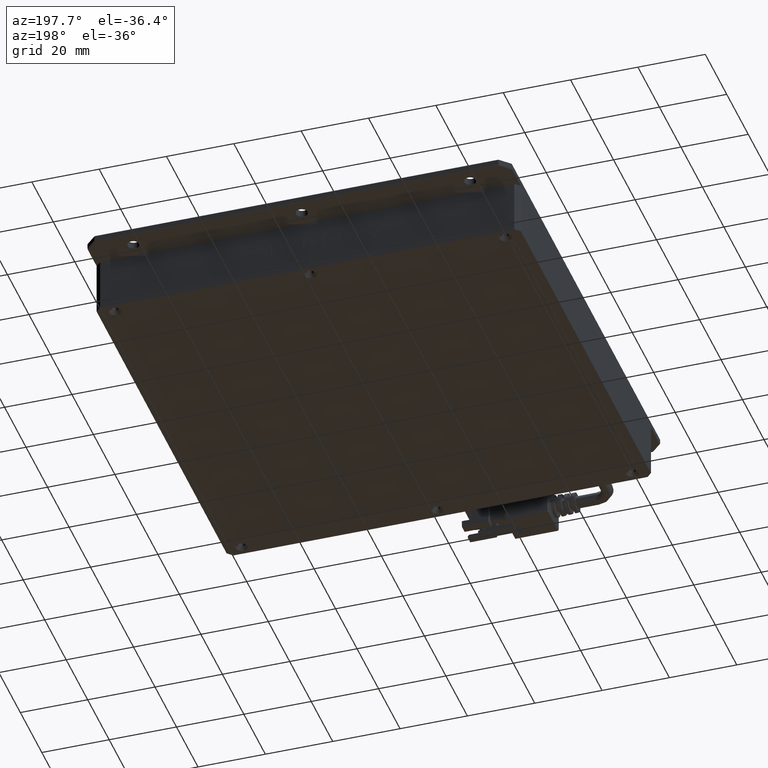
[diagram: clean part render]
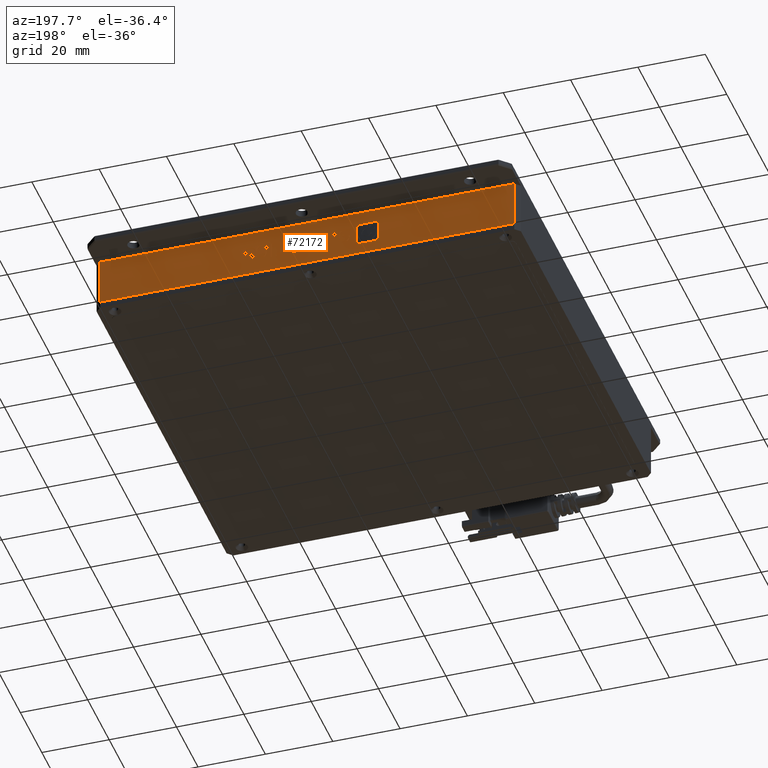
[diagram: same view with one face highlighted and labeled with its STEP entity id]
A machine part, auxiliary view. The second image highlights one B-rep face of the part: STEP entity #72172.
In plain terms, the highlighted planar face has unit normal (0, -1, 0).
Its self-contained STEP definition (entity closure, byte-faithful):
#114 = CARTESIAN_POINT ( 'NONE',  ( 15.17839297332601600, 72.88965253913710300, 7.418943049410931000 ) ) ;
#150 = EDGE_CURVE ( 'NONE', #39910, #42073, #12845, .T. ) ;
#644 = ORIENTED_EDGE ( 'NONE', *, *, #63685, .F. ) ;
#765 = CARTESIAN_POINT ( 'NONE',  ( -11.15524683197433100, 72.88965253913710300, 8.458579339297333600 ) ) ;
#894 = VECTOR ( 'NONE', #7333, 1000.000000000000000 ) ;
#906 = ORIENTED_EDGE ( 'NONE', *, *, #91943, .F. ) ;
#938 = VERTEX_POINT ( 'NONE', #73944 ) ;
#1027 = VERTEX_POINT ( 'NONE', #90417 ) ;
#1059 = CARTESIAN_POINT ( 'NONE',  ( 0.7489446228661211800, 72.88965253913710300, 6.749175607550478500 ) ) ;
#1203 = CARTESIAN_POINT ( 'NONE',  ( 14.61218150766885400, 72.88965253913710300, 8.298012816852800500 ) ) ;
#1238 = EDGE_CURVE ( 'NONE', #88937, #98182, #95165, .T. ) ;
#1720 = FACE_BOUND ( 'NONE', #86813, .T. ) ;
#1746 = EDGE_CURVE ( 'NONE', #34003, #21683, #13509, .T. ) ;
#1779 = CARTESIAN_POINT ( 'NONE',  ( 13.88303061529461100, 72.88965253913710300, 4.419044455576449000 ) ) ;
#1792 = VECTOR ( 'NONE', #58622, 1000.000000000000000 ) ;
#1912 = CARTESIAN_POINT ( 'NONE',  ( -6.332410163504942300, 72.88965253913710300, 8.088710491271411800 ) ) ;
#1998 = ORIENTED_EDGE ( 'NONE', *, *, #47765, .T. ) ;
#2286 = CARTESIAN_POINT ( 'NONE',  ( -7.315157594548704600, 72.88965253913710300, 8.444524444759792900 ) ) ;
#2470 = CARTESIAN_POINT ( 'NONE',  ( 4.699526018214772400, 72.88965253913710300, 6.937547700573754000 ) ) ;
#2542 = VECTOR ( 'NONE', #86421, 1000.000000000000000 ) ;
#2676 = CARTESIAN_POINT ( 'NONE',  ( -14.89432935719636800, 72.88965253913710300, 4.497999126214069500 ) ) ;
#2885 = CARTESIAN_POINT ( 'NONE',  ( 17.84675424969151100, 72.88965253913710300, 4.433099350114017200 ) ) ;
#3225 = ORIENTED_EDGE ( 'NONE', *, *, #80818, .F. ) ;
#3246 = B_SPLINE_CURVE_WITH_KNOTS ( 'NONE', 3,
 ( #54769, #93785, #62621, #15857 ),
 .UNSPECIFIED., .F., .F.,
 ( 4, 4 ),
 ( 10.00000000000000000, 11.00000000000000000 ),
 .UNSPECIFIED. ) ;
#3478 = LINE ( 'NONE', #92992, #81679 ) ;
#3493 = CARTESIAN_POINT ( 'NONE',  ( 10.29702466613258200, 72.88965253913710300, 8.967780258713254700 ) ) ;
#3800 = ORIENTED_EDGE ( 'NONE', *, *, #10105, .F. ) ;
#3873 = ORIENTED_EDGE ( 'NONE', *, *, #53385, .F. ) ;
#3899 = B_SPLINE_CURVE_WITH_KNOTS ( 'NONE', 3,
 ( #28687, #67577, #36515, #91260 ),
 .UNSPECIFIED., .F., .F.,
 ( 4, 4 ),
 ( 5.000000000000000000, 6.000000000000000000 ),
 .UNSPECIFIED. ) ;
#3936 = CARTESIAN_POINT ( 'NONE',  ( 61.14490263459336500, 72.88965253913710300, 13.99999999998362900 ) ) ;
#4073 = CARTESIAN_POINT ( 'NONE',  ( -11.94268598827474800, 72.88965253913710300, 6.372431421503926600 ) ) ;
#4190 = CARTESIAN_POINT ( 'NONE',  ( 16.93580238381797900, 72.88965253913710300, 7.084059328480690500 ) ) ;
#4617 = CARTESIAN_POINT ( 'NONE',  ( -8.271863922293398700, 72.88965253913710300, 8.060904920692696200 ) ) ;
#4927 = VERTEX_POINT ( 'NONE', #71411 ) ;
#5176 = CARTESIAN_POINT ( 'NONE',  ( 15.31516960934531500, 72.88965253913710300, 4.830773768718682200 ) ) ;
#5227 = LINE ( 'NONE', #11994, #46748 ) ;
#5387 = ORIENTED_EDGE ( 'NONE', *, *, #81483, .F. ) ;
#5763 = EDGE_CURVE ( 'NONE', #31761, #42239, #52791, .T. ) ;
#5779 = CARTESIAN_POINT ( 'NONE',  ( -20.38187477048314400, 72.88965253913710300, 3.274440234756731600 ) ) ;
#5889 = VERTEX_POINT ( 'NONE', #50902 ) ;
#5929 = CARTESIAN_POINT ( 'NONE',  ( -10.75160973083888500, 72.88965253913710300, 4.404989561038852300 ) ) ;
#6362 = PLANE ( 'NONE',  #10637 ) ;
#6507 = VERTEX_POINT ( 'NONE', #83644 ) ;
#6576 = ORIENTED_EDGE ( 'NONE', *, *, #38444, .F. ) ;
#6653 = CARTESIAN_POINT ( 'NONE',  ( 12.85489378457505100, 72.88965253913710300, 4.404989561038852300 ) ) ;
#6779 = ORIENTED_EDGE ( 'NONE', *, *, #78429, .F. ) ;
#7008 = CARTESIAN_POINT ( 'NONE',  ( 17.26764391978308300, 72.88965253913710300, 5.067881664878759900 ) ) ;
#7082 = VECTOR ( 'NONE', #33842, 1000.000000000000000 ) ;
#7089 = CARTESIAN_POINT ( 'NONE',  ( -16.11783929202426100, 72.88965253913710300, 3.274440234756731600 ) ) ;
#7126 = CARTESIAN_POINT ( 'NONE',  ( -8.271863922293398700, 72.88965253913710300, 7.293361654062080000 ) ) ;
#7194 = LINE ( 'NONE', #90450, #48795 ) ;
#7239 = CARTESIAN_POINT ( 'NONE',  ( 17.73626209176826100, 72.88965253913710300, 7.774757002899285400 ) ) ;
#7311 = CARTESIAN_POINT ( 'NONE',  ( 15.18484240545126000, 72.88965253913710300, 6.393361654062096600 ) ) ;
#7333 = DIRECTION ( 'NONE',  ( -1.000000000000000000, -0.0000000000000000000, -0.0000000000000000000 ) ) ;
#7371 = DIRECTION ( 'NONE',  ( 1.000000000000000000, -0.0000000000000000000, -0.0000000000000000000 ) ) ;
#7424 = VERTEX_POINT ( 'NONE', #63313 ) ;
#7490 = VECTOR ( 'NONE', #97406, 1000.000000000000000 ) ;
#7521 = CARTESIAN_POINT ( 'NONE',  ( -15.31036921447137500, 72.88965253913710300, 9.985605835279159200 ) ) ;
#7523 = LINE ( 'NONE', #80808, #46647 ) ;
#7564 = CARTESIAN_POINT ( 'NONE',  ( -7.334627578323704700, 72.88965253913710300, 9.051501188945820800 ) ) ;
#7645 = LINE ( 'NONE', #84068, #49243 ) ;
#7701 = DIRECTION ( 'NONE',  ( -1.000000000000000000, -0.0000000000000000000, -0.0000000000000000000 ) ) ;
#8248 = VERTEX_POINT ( 'NONE', #44088 ) ;
#8365 = B_SPLINE_CURVE_WITH_KNOTS ( 'NONE', 3,
 ( #96065, #33528, #2470, #56995 ),
 .UNSPECIFIED., .F., .F.,
 ( 4, 4 ),
 ( 6.000000000000000000, 7.000000000000000000 ),
 .UNSPECIFIED. ) ;
#8850 = CARTESIAN_POINT ( 'NONE',  ( 14.16948275158447100, 72.88965253913710300, 8.137750512904689900 ) ) ;
#8860 = VECTOR ( 'NONE', #99672, 1000.000000000000000 ) ;
#8904 = CARTESIAN_POINT ( 'NONE',  ( 12.91342542329854100, 72.88965253913710300, 5.053826770341163200 ) ) ;
#9032 = ORIENTED_EDGE ( 'NONE', *, *, #18656, .F. ) ;
#9054 = B_SPLINE_CURVE_WITH_KNOTS ( 'NONE', 3,
 ( #100678, #7008, #61635, #14865 ),
 .UNSPECIFIED., .F., .F.,
 ( 4, 4 ),
 ( 8.000000000000000000, 9.000000000000000000 ),
 .UNSPECIFIED. ) ;
#9095 = CARTESIAN_POINT ( 'NONE',  ( -1.340306323591500300, 72.88965253913710300, 4.404989561038852300 ) ) ;
#9111 = CARTESIAN_POINT ( 'NONE',  ( -10.07490610725847400, 72.88965253913710300, 8.716617468015581200 ) ) ;
#9355 = CARTESIAN_POINT ( 'NONE',  ( -9.833965058042682700, 72.88965253913710300, 5.723594212201643200 ) ) ;
#9359 = CARTESIAN_POINT ( 'NONE',  ( 16.87714905769577500, 72.88965253913710300, 5.053826770341163200 ) ) ;
#9360 = ORIENTED_EDGE ( 'NONE', *, *, #1238, .T. ) ;
#9751 = CARTESIAN_POINT ( 'NONE',  ( -6.651231147820624300, 72.88965253913710300, 8.472634233834957800 ) ) ;
#9890 = VERTEX_POINT ( 'NONE', #78705 ) ;
#9960 = CARTESIAN_POINT ( 'NONE',  ( -9.814373386869190700, 72.88965253913710300, 6.372431421503926600 ) ) ;
#9985 = CARTESIAN_POINT ( 'NONE',  ( 10.84376614801452200, 72.88965253913710300, 6.728245374992337000 ) ) ;
#10105 = EDGE_CURVE ( 'NONE', #68839, #78727, #92121, .T. ) ;
#10257 = CARTESIAN_POINT ( 'NONE',  ( 8.832516824055947100, 72.88965253913710300, 4.467780258713249400 ) ) ;
#10606 = EDGE_CURVE ( 'NONE', #35363, #79184, #30340, .T. ) ;
#10637 = AXIS2_PLACEMENT_3D ( 'NONE', #37718, #92447, #45609 ) ;
#10824 = CARTESIAN_POINT ( 'NONE',  ( -10.69307809211494800, 72.88965253913710300, 7.753826770341143900 ) ) ;
#10836 = CARTESIAN_POINT ( 'NONE',  ( 2.252392432492866800, 72.88965253913710300, 8.967780258713254700 ) ) ;
#11046 = B_SPLINE_CURVE_WITH_KNOTS ( 'NONE', 3,
 ( #24740, #32601, #87310, #40429 ),
 .UNSPECIFIED., .F., .F.,
 ( 4, 4 ),
 ( 1.000000000000000000, 2.000000000000000000 ),
 .UNSPECIFIED. ) ;
#11068 = CARTESIAN_POINT ( 'NONE',  ( -9.209100266263314800, 72.88965253913710300, 4.467780258713249400 ) ) ;
#11276 = DIRECTION ( 'NONE',  ( -0.0000000000000000000, -0.0000000000000000000, 1.000000000000000000 ) ) ;
#11303 = DIRECTION ( 'NONE',  ( 1.000000000000000000, -0.0000000000000000000, -0.0000000000000000000 ) ) ;
#11512 = LINE ( 'NONE', #46308, #29864 ) ;
#11611 = ORIENTED_EDGE ( 'NONE', *, *, #18208, .F. ) ;
#11703 = B_SPLINE_CURVE_WITH_KNOTS ( 'NONE', 3,
 ( #90943, #36166, #5176, #59725 ),
 .UNSPECIFIED., .F., .F.,
 ( 4, 4 ),
 ( 5.000000000000000000, 6.000000000000000000 ),
 .UNSPECIFIED. ) ;
#11886 = CARTESIAN_POINT ( 'NONE',  ( 14.61218150766885400, 72.88965253913710300, 8.298012816852800500 ) ) ;
#11968 = VECTOR ( 'NONE', #41394, 1000.000000000000000 ) ;
#11978 = CARTESIAN_POINT ( 'NONE',  ( -63.35509736540663500, 72.88965253913710300, 13.99999999998362900 ) ) ;
#11994 = CARTESIAN_POINT ( 'NONE',  ( 7.446253979274786200, 72.88965253913710300, 8.967780258713254700 ) ) ;
#12050 = CARTESIAN_POINT ( 'NONE',  ( -3.364576199199831300, 72.88965253913710300, 5.242198863364411200 ) ) ;
#12147 = CARTESIAN_POINT ( 'NONE',  ( -13.76531984441353600, 72.88965253913710300, 8.214291886620234400 ) ) ;
#12628 = EDGE_CURVE ( 'NONE', #88978, #24400, #14172, .T. ) ;
#12845 = B_SPLINE_CURVE_WITH_KNOTS ( 'NONE', 3,
 ( #94681, #86856, #39946, #1059 ),
 .UNSPECIFIED., .F., .F.,
 ( 4, 4 ),
 ( 0.0000000000000000000, 1.000000000000000000 ),
 .UNSPECIFIED. ) ;
#12916 = CARTESIAN_POINT ( 'NONE',  ( 12.91342542329854100, 72.88965253913710300, 5.053826770341163200 ) ) ;
#13187 = CARTESIAN_POINT ( 'NONE',  ( -13.81715867621458000, 72.88965253913710300, 6.707315142434194600 ) ) ;
#13509 = B_SPLINE_CURVE_WITH_KNOTS ( 'NONE', 3,
 ( #55894, #8850, #17029, #24889 ),
 .UNSPECIFIED., .F., .F.,
 ( 4, 4 ),
 ( 4.000000000000000000, 5.000000000000000000 ),
 .UNSPECIFIED. ) ;
#13690 = CARTESIAN_POINT ( 'NONE',  ( -5.356112164586424000, 72.88965253913710300, 8.444524444759792900 ) ) ;
#13692 = VERTEX_POINT ( 'NONE', #10836 ) ;
#14172 = B_SPLINE_CURVE_WITH_KNOTS ( 'NONE', 3,
 ( #98224, #90384, #43497, #51372 ),
 .UNSPECIFIED., .F., .F.,
 ( 4, 4 ),
 ( 1.000000000000000000, 2.000000000000000000 ),
 .UNSPECIFIED. ) ;
#14260 = ORIENTED_EDGE ( 'NONE', *, *, #45807, .F. ) ;
#14415 = ORIENTED_EDGE ( 'NONE', *, *, #82911, .F. ) ;
#14485 = CARTESIAN_POINT ( 'NONE',  ( 11.57900141031864600, 72.88965253913710300, 4.488710491271419300 ) ) ;
#14554 = VECTOR ( 'NONE', #24081, 1000.000000000000000 ) ;
#14572 = ORIENTED_EDGE ( 'NONE', *, *, #58919, .F. ) ;
#14865 = CARTESIAN_POINT ( 'NONE',  ( 17.67773045304466000, 72.88965253913710300, 5.807315142434182700 ) ) ;
#14869 = VERTEX_POINT ( 'NONE', #80864 ) ;
#15156 = CARTESIAN_POINT ( 'NONE',  ( 15.27610795439660100, 72.88965253913710300, 5.639873281969077100 ) ) ;
#15409 = VERTEX_POINT ( 'NONE', #24072 ) ;
#15519 = CARTESIAN_POINT ( 'NONE',  ( 16.93580238381797900, 72.88965253913710300, 7.084059328480690500 ) ) ;
#15683 = CARTESIAN_POINT ( 'NONE',  ( -12.87992233224510800, 72.88965253913710300, 6.728245374992337000 ) ) ;
#15857 = CARTESIAN_POINT ( 'NONE',  ( 16.23281428214140500, 72.88965253913710300, 5.639873281969077100 ) ) ;
#15956 = ORIENTED_EDGE ( 'NONE', *, *, #100673, .F. ) ;
#16205 = EDGE_CURVE ( 'NONE', #31663, #90005, #45613, .T. ) ;
#17029 = CARTESIAN_POINT ( 'NONE',  ( 13.66825235677615600, 72.88965253913710300, 8.472634233834957800 ) ) ;
#18077 = EDGE_CURVE ( 'NONE', #74895, #25868, #41214, .T. ) ;
#18208 = EDGE_CURVE ( 'NONE', #74860, #82782, #69119, .T. ) ;
#18329 = VERTEX_POINT ( 'NONE', #32579 ) ;
#18452 = CARTESIAN_POINT ( 'NONE',  ( -6.358329579405519500, 72.88965253913710300, 7.293361654062080000 ) ) ;
#18490 = VECTOR ( 'NONE', #65401, 1000.000000000000000 ) ;
#18651 = ORIENTED_EDGE ( 'NONE', *, *, #28309, .F. ) ;
#18656 = EDGE_CURVE ( 'NONE', #25868, #66612, #85219, .T. ) ;
#18832 = ORIENTED_EDGE ( 'NONE', *, *, #70765, .F. ) ;
#18974 = CARTESIAN_POINT ( 'NONE',  ( -11.72790772975695900, 72.88965253913710300, 4.404989561038852300 ) ) ;
#19223 = VECTOR ( 'NONE', #54168, 1000.000000000000000 ) ;
#19259 = EDGE_CURVE ( 'NONE', #72814, #25579, #54264, .T. ) ;
#19296 = CARTESIAN_POINT ( 'NONE',  ( 16.97474235136797900, 72.88965253913710300, 6.288710491271415600 ) ) ;
#19346 = LINE ( 'NONE', #100423, #60862 ) ;
#19418 = ORIENTED_EDGE ( 'NONE', *, *, #73209, .F. ) ;
#20015 = FACE_BOUND ( 'NONE', #93057, .T. ) ;
#20023 = CARTESIAN_POINT ( 'NONE',  ( -13.04918950368905200, 72.88965253913710300, 8.995585829291940200 ) ) ;
#20887 = EDGE_LOOP ( 'NONE', ( #56162, #91479, #82001, #65941, #71476, #97371, #11611, #40032, #3225, #95948, #89778, #18651, #72816, #14572 ) ) ;
#21034 = CARTESIAN_POINT ( 'NONE',  ( 13.79213012854485500, 72.88965253913710300, 5.891036072666722100 ) ) ;
#21092 = DIRECTION ( 'NONE',  ( 1.000000000000000000, -0.0000000000000000000, -0.0000000000000000000 ) ) ;
#21364 = B_SPLINE_CURVE_WITH_KNOTS ( 'NONE', 3,
 ( #94395, #31853, #765, #55350 ),
 .UNSPECIFIED., .F., .F.,
 ( 4, 4 ),
 ( 4.000000000000000000, 5.000000000000000000 ),
 .UNSPECIFIED. ) ;
#21635 = LINE ( 'NONE', #30597, #894 ) ;
#21650 = VECTOR ( 'NONE', #66583, 1000.000000000000000 ) ;
#21676 = EDGE_CURVE ( 'NONE', #66612, #24416, #53544, .T. ) ;
#21683 = VERTEX_POINT ( 'NONE', #45555 ) ;
#21692 = VECTOR ( 'NONE', #23389, 1000.000000000000000 ) ;
#21713 = CARTESIAN_POINT ( 'NONE',  ( 14.70989648873932700, 72.88965253913710300, 5.891036072666722100 ) ) ;
#22516 = CARTESIAN_POINT ( 'NONE',  ( -21.60549478818052200, 72.88965253913710300, 8.762034712391203700 ) ) ;
#22731 = CARTESIAN_POINT ( 'NONE',  ( 15.17839297332601600, 72.88965253913710300, 8.214291886620234400 ) ) ;
#22822 = VECTOR ( 'NONE', #28404, 1000.000000000000000 ) ;
#23226 = CARTESIAN_POINT ( 'NONE',  ( -14.89432935719636800, 72.88965253913710300, 9.569627124645041500 ) ) ;
#23389 = DIRECTION ( 'NONE',  ( -0.0000000000000000000, -0.0000000000000000000, -1.000000000000000000 ) ) ;
#23562 = CARTESIAN_POINT ( 'NONE',  ( -12.45705862213109000, 72.88965253913710300, 5.102866791974469700 ) ) ;
#23689 = CARTESIAN_POINT ( 'NONE',  ( 13.36902304363396600, 72.88965253913710300, 5.053826770341163200 ) ) ;
#24072 = CARTESIAN_POINT ( 'NONE',  ( 18.57590514206575000, 72.88965253913710300, 5.807315142434182700 ) ) ;
#24073 = B_SPLINE_CURVE_WITH_KNOTS ( 'NONE', 3,
 ( #88632, #96499, #2885, #57414 ),
 .UNSPECIFIED., .F., .F.,
 ( 4, 4 ),
 ( 6.000000000000000000, 7.000000000000000000 ),
 .UNSPECIFIED. ) ;
#24081 = DIRECTION ( 'NONE',  ( -0.0000000000000000000, -0.0000000000000000000, 1.000000000000000000 ) ) ;
#24242 = EDGE_CURVE ( 'NONE', #70659, #31761, #97519, .T. ) ;
#24275 = ORIENTED_EDGE ( 'NONE', *, *, #81616, .F. ) ;
#24372 = VERTEX_POINT ( 'NONE', #9355 ) ;
#24394 = VERTEX_POINT ( 'NONE', #33259 ) ;
#24400 = VERTEX_POINT ( 'NONE', #87955 ) ;
#24416 = VERTEX_POINT ( 'NONE', #95810 ) ;
#24442 = CARTESIAN_POINT ( 'NONE',  ( 12.26239784082172700, 72.88965253913710300, 8.388913303602391700 ) ) ;
#24740 = CARTESIAN_POINT ( 'NONE',  ( -11.72790772975695900, 72.88965253913710300, 5.032896537783021700 ) ) ;
#24747 = ORIENTED_EDGE ( 'NONE', *, *, #28119, .F. ) ;
#24785 = CARTESIAN_POINT ( 'NONE',  ( 11.82651357905850600, 72.88965253913710300, 7.830672362553165100 ) ) ;
#24889 = CARTESIAN_POINT ( 'NONE',  ( 13.10873369804199700, 72.88965253913710300, 8.444524444759792900 ) ) ;
#24983 = CARTESIAN_POINT ( 'NONE',  ( 14.50144597494840100, 72.88965253913710300, 4.914494698951221700 ) ) ;
#25083 = EDGE_LOOP ( 'NONE', ( #1998, #58594, #9360, #94871 ) ) ;
#25130 = VERTEX_POINT ( 'NONE', #60952 ) ;
#25235 = VECTOR ( 'NONE', #32594, 1000.000000000000000 ) ;
#25579 = VERTEX_POINT ( 'NONE', #36263 ) ;
#25868 = VERTEX_POINT ( 'NONE', #70722 ) ;
#25932 = CARTESIAN_POINT ( 'NONE',  ( -1.340306323591500300, 72.88965253913710300, 9.051501188945820800 ) ) ;
#25942 = CARTESIAN_POINT ( 'NONE',  ( -9.814373386869190700, 72.88965253913710300, 6.372431421503926600 ) ) ;
#26181 = DIRECTION ( 'NONE',  ( -1.000000000000000000, -0.0000000000000000000, -0.0000000000000000000 ) ) ;
#26288 = ORIENTED_EDGE ( 'NONE', *, *, #61267, .F. ) ;
#27216 = ORIENTED_EDGE ( 'NONE', *, *, #32835, .F. ) ;
#27349 = VERTEX_POINT ( 'NONE', #2286 ) ;
#27800 = VECTOR ( 'NONE', #11276, 1000.000000000000000 ) ;
#28108 = EDGE_CURVE ( 'NONE', #14869, #74860, #11703, .T. ) ;
#28119 = EDGE_CURVE ( 'NONE', #6507, #50483, #3899, .T. ) ;
#28164 = EDGE_CURVE ( 'NONE', #7424, #24372, #7645, .T. ) ;
#28261 = LINE ( 'NONE', #65885, #7490 ) ;
#28309 = EDGE_CURVE ( 'NONE', #40897, #52768, #89663, .T. ) ;
#28404 = DIRECTION ( 'NONE',  ( -1.000000000000000000, -0.0000000000000000000, -0.0000000000000000000 ) ) ;
#28526 = DIRECTION ( 'NONE',  ( -0.0000000000000000000, -0.0000000000000000000, -1.000000000000000000 ) ) ;
#28687 = CARTESIAN_POINT ( 'NONE',  ( 4.673606602314528400, 72.88965253913710300, 5.932896537783033600 ) ) ;
#28858 = EDGE_CURVE ( 'NONE', #1027, #31663, #51447, .T. ) ;
#29479 = EDGE_CURVE ( 'NONE', #69309, #36706, #82929, .T. ) ;
#29626 = LINE ( 'NONE', #82964, #8860 ) ;
#29655 = CARTESIAN_POINT ( 'NONE',  ( 0.7489446228661211800, 72.88965253913710300, 6.749175607550478500 ) ) ;
#29850 = CARTESIAN_POINT ( 'NONE',  ( -9.209100266263314800, 72.88965253913710300, 7.063129095922521500 ) ) ;
#29864 = VECTOR ( 'NONE', #7371, 1000.000000000000000 ) ;
#29943 = EDGE_CURVE ( 'NONE', #70216, #35363, #11512, .T. ) ;
#30226 = CARTESIAN_POINT ( 'NONE',  ( 10.84376614801452200, 72.88965253913710300, 6.728245374992337000 ) ) ;
#30233 = ORIENTED_EDGE ( 'NONE', *, *, #42242, .F. ) ;
#30340 = LINE ( 'NONE', #98778, #90281 ) ;
#30380 = DIRECTION ( 'NONE',  ( -0.0000000000000000000, -0.0000000000000000000, -1.000000000000000000 ) ) ;
#30402 = CARTESIAN_POINT ( 'NONE',  ( -20.38187477048314400, 72.88965253913710300, 9.985605835279159200 ) ) ;
#30597 = CARTESIAN_POINT ( 'NONE',  ( 1.334747759696774900, 72.88965253913710300, 4.467780258713249400 ) ) ;
#30629 = CARTESIAN_POINT ( 'NONE',  ( 16.97474235136797900, 72.88965253913710300, 9.051501188945820800 ) ) ;
#30895 = LINE ( 'NONE', #71339, #69922 ) ;
#30913 = CARTESIAN_POINT ( 'NONE',  ( -1.340306323591500300, 72.88965253913710300, 9.051501188945820800 ) ) ;
#31043 = EDGE_CURVE ( 'NONE', #99917, #24394, #73283, .T. ) ;
#31091 = CARTESIAN_POINT ( 'NONE',  ( 16.43445030161139200, 72.88965253913710300, 5.053826770341163200 ) ) ;
#31207 = CARTESIAN_POINT ( 'NONE',  ( 16.83808740274717100, 72.88965253913710300, 8.465454677317934400 ) ) ;
#31374 = CARTESIAN_POINT ( 'NONE',  ( 14.61218150766885400, 72.88965253913710300, 7.439873281969072500 ) ) ;
#31494 = VERTEX_POINT ( 'NONE', #35373 ) ;
#31573 = CARTESIAN_POINT ( 'NONE',  ( 12.91342542329854100, 72.88965253913710300, 5.053826770341163200 ) ) ;
#31663 = VERTEX_POINT ( 'NONE', #85623 ) ;
#31761 = VERTEX_POINT ( 'NONE', #86994 ) ;
#31853 = CARTESIAN_POINT ( 'NONE',  ( -10.83642584765831500, 72.88965253913710300, 8.228346781157803500 ) ) ;
#31942 = ORIENTED_EDGE ( 'NONE', *, *, #63154, .F. ) ;
#32343 = CARTESIAN_POINT ( 'NONE',  ( -10.69307809211494800, 72.88965253913710300, 9.051501188945820800 ) ) ;
#32464 = ORIENTED_EDGE ( 'NONE', *, *, #47704, .F. ) ;
#32579 = CARTESIAN_POINT ( 'NONE',  ( 5.122754790524375300, 72.88965253913710300, 4.467780258713249400 ) ) ;
#32594 = DIRECTION ( 'NONE',  ( 1.000000000000000000, -0.0000000000000000000, -0.0000000000000000000 ) ) ;
#32602 = EDGE_CURVE ( 'NONE', #83431, #72114, #43589, .T. ) ;
#32601 = CARTESIAN_POINT ( 'NONE',  ( -11.25928955777222400, 72.88965253913710300, 5.032896537783021700 ) ) ;
#32689 = VERTEX_POINT ( 'NONE', #21034 ) ;
#32835 = EDGE_CURVE ( 'NONE', #50483, #36487, #21635, .T. ) ;
#32901 = LINE ( 'NONE', #2676, #51223 ) ;
#33158 = LINE ( 'NONE', #39091, #40472 ) ;
#33217 = LINE ( 'NONE', #3493, #72288 ) ;
#33259 = CARTESIAN_POINT ( 'NONE',  ( -5.421093235435714400, 72.88965253913710300, 4.467780258713249400 ) ) ;
#33528 = CARTESIAN_POINT ( 'NONE',  ( 4.191846191281323200, 72.88965253913710300, 7.426122605927954400 ) ) ;
#33842 = DIRECTION ( 'NONE',  ( 1.000000000000000000, -0.0000000000000000000, -0.0000000000000000000 ) ) ;
#33900 = ORIENTED_EDGE ( 'NONE', *, *, #73791, .F. ) ;
#34003 = VERTEX_POINT ( 'NONE', #31374 ) ;
#34187 = CARTESIAN_POINT ( 'NONE',  ( -16.11783929202426100, 72.88965253913710300, 9.985605835279159200 ) ) ;
#34441 = VERTEX_POINT ( 'NONE', #21713 ) ;
#34454 = ORIENTED_EDGE ( 'NONE', *, *, #74780, .F. ) ;
#34503 = CARTESIAN_POINT ( 'NONE',  ( 9.379258305938108700, 72.88965253913710300, 8.967780258713254700 ) ) ;
#34529 = EDGE_CURVE ( 'NONE', #101379, #18329, #33158, .T. ) ;
#34546 = ORIENTED_EDGE ( 'NONE', *, *, #40190, .F. ) ;
#34589 = VERTEX_POINT ( 'NONE', #1203 ) ;
#34608 = B_SPLINE_CURVE_WITH_KNOTS ( 'NONE', 3,
 ( #15519, #62294, #93798, #46965 ),
 .UNSPECIFIED., .F., .F.,
 ( 4, 4 ),
 ( 3.000000000000000000, 4.000000000000000000 ),
 .UNSPECIFIED. ) ;
#35107 = CARTESIAN_POINT ( 'NONE',  ( 12.89395543952376300, 72.88965253913710300, 9.051501188945820800 ) ) ;
#35320 = LINE ( 'NONE', #47322, #14554 ) ;
#35363 = VERTEX_POINT ( 'NONE', #85790 ) ;
#35369 = CARTESIAN_POINT ( 'NONE',  ( 10.29702466613258200, 72.88965253913710300, 8.967780258713254700 ) ) ;
#35373 = CARTESIAN_POINT ( 'NONE',  ( 8.832516824055947100, 72.88965253913710300, 5.095687235457447200 ) ) ;
#35378 = VERTEX_POINT ( 'NONE', #47122 ) ;
#35448 = VECTOR ( 'NONE', #85007, 1000.000000000000000 ) ;
#35572 = CARTESIAN_POINT ( 'NONE',  ( 18.69309010691133500, 72.88965253913710300, 7.711966305224887500 ) ) ;
#35598 = CARTESIAN_POINT ( 'NONE',  ( -12.43077414403526100, 72.88965253913710300, 8.374858409064794200 ) ) ;
#36166 = CARTESIAN_POINT ( 'NONE',  ( 15.84231942005387400, 72.88965253913710300, 4.419044455576449000 ) ) ;
#36222 = ORIENTED_EDGE ( 'NONE', *, *, #5763, .F. ) ;
#36246 = LINE ( 'NONE', #93112, #77834 ) ;
#36263 = CARTESIAN_POINT ( 'NONE',  ( -11.94268598827474800, 72.88965253913710300, 6.372431421503926600 ) ) ;
#36394 = CARTESIAN_POINT ( 'NONE',  ( -13.06878117486243200, 72.88965253913710300, 4.474959815230272800 ) ) ;
#36427 = VECTOR ( 'NONE', #87841, 1000.000000000000000 ) ;
#36487 = VERTEX_POINT ( 'NONE', #99886 ) ;
#36515 = CARTESIAN_POINT ( 'NONE',  ( 4.178825639631567100, 72.88965253913710300, 4.467780258713249400 ) ) ;
#36706 = VERTEX_POINT ( 'NONE', #63892 ) ;
#36955 = CARTESIAN_POINT ( 'NONE',  ( -10.12041719433243300, 72.88965253913710300, 4.844524444759745300 ) ) ;
#37183 = DIRECTION ( 'NONE',  ( 1.000000000000000000, -0.0000000000000000000, -0.0000000000000000000 ) ) ;
#37245 = ORIENTED_EDGE ( 'NONE', *, *, #61513, .F. ) ;
#37657 = DIRECTION ( 'NONE',  ( -0.0000000000000000000, -0.0000000000000000000, 1.000000000000000000 ) ) ;
#37718 = CARTESIAN_POINT ( 'NONE',  ( -63.35509736540663500, 72.88965253913710300, 13.99999999998362900 ) ) ;
#37824 = ORIENTED_EDGE ( 'NONE', *, *, #50060, .F. ) ;
#38156 = CARTESIAN_POINT ( 'NONE',  ( -14.89432935719636800, 72.88965253913710300, 3.690235473937458500 ) ) ;
#38400 = B_SPLINE_CURVE_WITH_KNOTS ( 'NONE', 3,
 ( #62135, #7521, #23226, #77849 ),
 .UNSPECIFIED., .F., .F.,
 ( 4, 4 ),
 ( 5.000000000000000000, 6.000000000000000000 ),
 .UNSPECIFIED. ) ;
#38444 = EDGE_CURVE ( 'NONE', #76069, #83431, #61969, .T. ) ;
#38889 = LINE ( 'NONE', #10257, #36427 ) ;
#39091 = CARTESIAN_POINT ( 'NONE',  ( 5.122754790524375300, 72.88965253913710300, 4.467780258713249400 ) ) ;
#39242 = VECTOR ( 'NONE', #96954, 1000.000000000000000 ) ;
#39369 = CARTESIAN_POINT ( 'NONE',  ( 13.66180292465069000, 72.88965253913710300, 5.333099350114029100 ) ) ;
#39564 = VERTEX_POINT ( 'NONE', #75139 ) ;
#39589 = CARTESIAN_POINT ( 'NONE',  ( 2.252392432492866800, 72.88965253913710300, 7.398012816852817000 ) ) ;
#39753 = B_SPLINE_CURVE_WITH_KNOTS ( 'NONE', 3,
 ( #35107, #89862, #58656, #11886 ),
 .UNSPECIFIED., .F., .F.,
 ( 4, 4 ),
 ( 6.000000000000000000, 7.000000000000000000 ),
 .UNSPECIFIED. ) ;
#39910 = VERTEX_POINT ( 'NONE', #25932 ) ;
#39946 = CARTESIAN_POINT ( 'NONE',  ( 0.6835984898212466000, 72.88965253913710300, 8.200541210579114400 ) ) ;
#40032 = ORIENTED_EDGE ( 'NONE', *, *, #28108, .F. ) ;
#40190 = EDGE_CURVE ( 'NONE', #25579, #66312, #29626, .T. ) ;
#40287 = DIRECTION ( 'NONE',  ( -0.0000000000000000000, -0.0000000000000000000, 1.000000000000000000 ) ) ;
#40429 = CARTESIAN_POINT ( 'NONE',  ( -10.81014136956237700, 72.88965253913710300, 5.723594212201643200 ) ) ;
#40472 = VECTOR ( 'NONE', #7701, 1000.000000000000000 ) ;
#40499 = VERTEX_POINT ( 'NONE', #86337 ) ;
#40708 = VERTEX_POINT ( 'NONE', #58472 ) ;
#40777 = FACE_BOUND ( 'NONE', #87977, .T. ) ;
#40897 = VERTEX_POINT ( 'NONE', #100212 ) ;
#41039 = EDGE_CURVE ( 'NONE', #94412, #75133, #66997, .T. ) ;
#41052 = EDGE_CURVE ( 'NONE', #75133, #68839, #21364, .T. ) ;
#41145 = EDGE_CURVE ( 'NONE', #34441, #70659, #76320, .T. ) ;
#41184 = EDGE_CURVE ( 'NONE', #53524, #66879, #66908, .T. ) ;
#41214 = LINE ( 'NONE', #75282, #82826 ) ;
#41270 = ORIENTED_EDGE ( 'NONE', *, *, #79588, .F. ) ;
#41394 = DIRECTION ( 'NONE',  ( -0.0000000000000000000, 0.0000000000000000000, 1.000000000000000000 ) ) ;
#41545 = VECTOR ( 'NONE', #97024, 1000.000000000000000 ) ;
#41559 = DIRECTION ( 'NONE',  ( -0.0000000000000000000, -0.0000000000000000000, -1.000000000000000000 ) ) ;
#41848 = VERTEX_POINT ( 'NONE', #35369 ) ;
#41880 = CARTESIAN_POINT ( 'NONE',  ( 15.17839297332601600, 72.88965253913710300, 7.418943049410931000 ) ) ;
#42073 = VERTEX_POINT ( 'NONE', #76981 ) ;
#42129 = CARTESIAN_POINT ( 'NONE',  ( 8.832516824055947100, 72.88965253913710300, 4.467780258713249400 ) ) ;
#42159 = EDGE_CURVE ( 'NONE', #82782, #69309, #34608, .T. ) ;
#42239 = VERTEX_POINT ( 'NONE', #71482 ) ;
#42242 = EDGE_CURVE ( 'NONE', #938, #7424, #11046, .T. ) ;
#42765 = CARTESIAN_POINT ( 'NONE',  ( -21.60549478818052200, 72.88965253913710300, 8.762034712391203700 ) ) ;
#42954 = ORIENTED_EDGE ( 'NONE', *, *, #71187, .F. ) ;
#42959 = ORIENTED_EDGE ( 'NONE', *, *, #21676, .F. ) ;
#43152 = CARTESIAN_POINT ( 'NONE',  ( -1.340306323591500300, 72.88965253913710300, 4.404989561038852300 ) ) ;
#43228 = FACE_BOUND ( 'NONE', #94271, .T. ) ;
#43444 = CARTESIAN_POINT ( 'NONE',  ( 18.69309010691133500, 72.88965253913710300, 7.000338398248152000 ) ) ;
#43497 = CARTESIAN_POINT ( 'NONE',  ( -21.60549478818052200, 72.88965253913710300, 3.935157632828784300 ) ) ;
#43499 = CARTESIAN_POINT ( 'NONE',  ( -7.315157594548704600, 72.88965253913710300, 8.444524444759792900 ) ) ;
#43574 = EDGE_CURVE ( 'NONE', #4927, #57381, #96861, .T. ) ;
#43589 = B_SPLINE_CURVE_WITH_KNOTS ( 'NONE', 3,
 ( #66744, #12147, #20023, #74657 ),
 .UNSPECIFIED., .F., .F.,
 ( 4, 4 ),
 ( 11.00000000000000000, 12.00000000000000000 ),
 .UNSPECIFIED. ) ;
#44004 = LINE ( 'NONE', #97354, #41545 ) ;
#44020 = CARTESIAN_POINT ( 'NONE',  ( 11.81337134001059200, 72.88965253913710300, 5.653928176506672900 ) ) ;
#44036 = CARTESIAN_POINT ( 'NONE',  ( -61.85509736540666400, 72.88965253913710300, -1.637058544279312900E-011 ) ) ;
#44088 = CARTESIAN_POINT ( 'NONE',  ( 7.446253979274786200, 72.88965253913710300, 5.095687235457447200 ) ) ;
#44167 = LINE ( 'NONE', #65426, #39242 ) ;
#44283 = CARTESIAN_POINT ( 'NONE',  ( -11.66925440363486600, 72.88965253913710300, 9.051501188945820800 ) ) ;
#45363 = CARTESIAN_POINT ( 'NONE',  ( -0.03873790823183398400, 72.88965253913710300, 4.488710491271419300 ) ) ;
#45522 = CARTESIAN_POINT ( 'NONE',  ( -16.11783929202426100, 72.88965253913710300, 9.985605835279159200 ) ) ;
#45555 = CARTESIAN_POINT ( 'NONE',  ( 13.10873369804199700, 72.88965253913710300, 8.444524444759792900 ) ) ;
#45609 = DIRECTION ( 'NONE',  ( 0.0000000000000000000, -0.0000000000000000000, -1.000000000000000000 ) ) ;
#45613 = B_SPLINE_CURVE_WITH_KNOTS ( 'NONE', 3,
 ( #97387, #81656, #97070, #50534 ),
 .UNSPECIFIED., .F., .F.,
 ( 4, 4 ),
 ( 12.00000000000000000, 13.00000000000000000 ),
 .UNSPECIFIED. ) ;
#45739 = ORIENTED_EDGE ( 'NONE', *, *, #43574, .F. ) ;
#45807 = EDGE_CURVE ( 'NONE', #5889, #4927, #32901, .T. ) ;
#45992 = LINE ( 'NONE', #63632, #25235 ) ;
#46050 = CARTESIAN_POINT ( 'NONE',  ( 6.509017635305314200, 72.88965253913710300, 8.967780258713254700 ) ) ;
#46164 = CARTESIAN_POINT ( 'NONE',  ( 17.42389053957782600, 72.88965253913710300, 8.465454677317934400 ) ) ;
#46237 = EDGE_CURVE ( 'NONE', #47806, #40897, #3246, .T. ) ;
#46256 = DIRECTION ( 'NONE',  ( 1.000000000000000000, -0.0000000000000000000, -0.0000000000000000000 ) ) ;
#46278 = VECTOR ( 'NONE', #86554, 1000.000000000000000 ) ;
#46308 = CARTESIAN_POINT ( 'NONE',  ( 6.509017635305314200, 72.88965253913710300, 5.095687235457447200 ) ) ;
#46513 = CARTESIAN_POINT ( 'NONE',  ( -9.248161921211917000, 72.88965253913710300, 8.430773768718646400 ) ) ;
#46647 = VECTOR ( 'NONE', #26181, 1000.000000000000000 ) ;
#46748 = VECTOR ( 'NONE', #66600, 1000.000000000000000 ) ;
#46893 = CARTESIAN_POINT ( 'NONE',  ( 15.65991000956168500, 72.88965253913710300, 8.102765385809007600 ) ) ;
#46965 = CARTESIAN_POINT ( 'NONE',  ( 17.73626209176826100, 72.88965253913710300, 7.774757002899285400 ) ) ;
#47122 = CARTESIAN_POINT ( 'NONE',  ( 17.67773045304466000, 72.88965253913710300, 5.807315142434182700 ) ) ;
#47299 = CARTESIAN_POINT ( 'NONE',  ( 12.85489378457505100, 72.88965253913710300, 4.404989561038852300 ) ) ;
#47322 = CARTESIAN_POINT ( 'NONE',  ( -6.358329579405519500, 72.88965253913710300, 7.293361654062080000 ) ) ;
#47672 = B_SPLINE_CURVE_WITH_KNOTS ( 'NONE', 3,
 ( #98710, #44020, #59666, #12916 ),
 .UNSPECIFIED., .F., .F.,
 ( 4, 4 ),
 ( 2.000000000000000000, 3.000000000000000000 ),
 .UNSPECIFIED. ) ;
#47704 = EDGE_CURVE ( 'NONE', #57381, #88978, #7523, .T. ) ;
#47765 = EDGE_CURVE ( 'NONE', #91296, #100922, #78360, .T. ) ;
#47806 = VERTEX_POINT ( 'NONE', #19296 ) ;
#48068 = ORIENTED_EDGE ( 'NONE', *, *, #41052, .F. ) ;
#48086 = ORIENTED_EDGE ( 'NONE', *, *, #49833, .F. ) ;
#48104 = ORIENTED_EDGE ( 'NONE', *, *, #12628, .F. ) ;
#48342 = B_SPLINE_CURVE_WITH_KNOTS ( 'NONE', 3,
 ( #31573, #23689, #39369, #94090 ),
 .UNSPECIFIED., .F., .F.,
 ( 4, 4 ),
 ( 1.000000000000000000, 2.000000000000000000 ),
 .UNSPECIFIED. ) ;
#48706 = LINE ( 'NONE', #86073, #69391 ) ;
#48795 = VECTOR ( 'NONE', #97959, 1000.000000000000000 ) ;
#48931 = CARTESIAN_POINT ( 'NONE',  ( 11.59214364936689300, 72.88965253913710300, 8.981530934754344400 ) ) ;
#49243 = VECTOR ( 'NONE', #37183, 1000.000000000000000 ) ;
#49833 = EDGE_CURVE ( 'NONE', #68949, #41848, #33217, .T. ) ;
#50060 = EDGE_CURVE ( 'NONE', #58893, #53524, #65326, .T. ) ;
#50143 = VECTOR ( 'NONE', #50904, 1000.000000000000000 ) ;
#50296 = VERTEX_POINT ( 'NONE', #71985 ) ;
#50339 = B_SPLINE_CURVE_WITH_KNOTS ( 'NONE', 3,
 ( #94878, #32343, #9111, #63703 ),
 .UNSPECIFIED., .F., .F.,
 ( 4, 4 ),
 ( 10.00000000000000000, 11.00000000000000000 ),
 .UNSPECIFIED. ) ;
#50483 = VERTEX_POINT ( 'NONE', #58585 ) ;
#50506 = ORIENTED_EDGE ( 'NONE', *, *, #53729, .F. ) ;
#50534 = CARTESIAN_POINT ( 'NONE',  ( 18.69309010691133500, 72.88965253913710300, 7.711966305224887500 ) ) ;
#50832 = LINE ( 'NONE', #62420, #90008 ) ;
#50902 = CARTESIAN_POINT ( 'NONE',  ( -14.89432935719636800, 72.88965253913710300, 8.762034712391203700 ) ) ;
#50904 = DIRECTION ( 'NONE',  ( 1.000000000000000000, -0.0000000000000000000, -0.0000000000000000000 ) ) ;
#51013 = CARTESIAN_POINT ( 'NONE',  ( -2.668037529648836800, 72.88965253913710300, 4.460904920692704500 ) ) ;
#51223 = VECTOR ( 'NONE', #41559, 1000.000000000000000 ) ;
#51316 = CARTESIAN_POINT ( 'NONE',  ( 16.97474235136797900, 72.88965253913710300, 6.288710491271415600 ) ) ;
#51372 = CARTESIAN_POINT ( 'NONE',  ( -21.60549478818052200, 72.88965253913710300, 4.742688887931223000 ) ) ;
#51447 = B_SPLINE_CURVE_WITH_KNOTS ( 'NONE', 3,
 ( #22731, #69478, #77353, #30629 ),
 .UNSPECIFIED., .F., .F.,
 ( 4, 4 ),
 ( 13.00000000000000000, 14.00000000000000000 ),
 .UNSPECIFIED. ) ;
#52332 = CARTESIAN_POINT ( 'NONE',  ( 18.69309010691133500, 72.88965253913710300, 7.711966305224887500 ) ) ;
#52621 = CARTESIAN_POINT ( 'NONE',  ( -7.334627578323704700, 72.88965253913710300, 9.051501188945820800 ) ) ;
#52768 = VERTEX_POINT ( 'NONE', #9359 ) ;
#52791 = B_SPLINE_CURVE_WITH_KNOTS ( 'NONE', 3,
 ( #9985, #56675, #48931, #64561 ),
 .UNSPECIFIED., .F., .F.,
 ( 4, 4 ),
 ( 7.000000000000000000, 8.000000000000000000 ),
 .UNSPECIFIED. ) ;
#52842 = CARTESIAN_POINT ( 'NONE',  ( 15.17839297332601600, 72.88965253913710300, 8.214291886620234400 ) ) ;
#52909 = CARTESIAN_POINT ( 'NONE',  ( 8.832516824055947100, 72.88965253913710300, 5.095687235457447200 ) ) ;
#53197 = DIRECTION ( 'NONE',  ( 1.000000000000000000, -0.0000000000000000000, 0.0000000000000000000 ) ) ;
#53326 = VERTEX_POINT ( 'NONE', #18452 ) ;
#53385 = EDGE_CURVE ( 'NONE', #50296, #68949, #90205, .T. ) ;
#53524 = VERTEX_POINT ( 'NONE', #91565 ) ;
#53544 = LINE ( 'NONE', #29850, #92710 ) ;
#53729 = EDGE_CURVE ( 'NONE', #66312, #94412, #50832, .T. ) ;
#53868 = CARTESIAN_POINT ( 'NONE',  ( -15.31036921447137500, 72.88965253913710300, 3.274440234756731600 ) ) ;
#54008 = CARTESIAN_POINT ( 'NONE',  ( 17.72311985272023800, 72.88965253913710300, 8.235222119178375900 ) ) ;
#54085 = CARTESIAN_POINT ( 'NONE',  ( 15.73791163206006500, 72.88965253913710300, 6.874757002899301000 ) ) ;
#54168 = DIRECTION ( 'NONE',  ( -0.0000000000000000000, -0.0000000000000000000, 1.000000000000000000 ) ) ;
#54264 = LINE ( 'NONE', #4073, #1792 ) ;
#54330 = CARTESIAN_POINT ( 'NONE',  ( -8.623297129432216900, 72.88965253913710300, 9.093361654062077200 ) ) ;
#54588 = CARTESIAN_POINT ( 'NONE',  ( 16.87714905769577500, 72.88965253913710300, 5.053826770341163200 ) ) ;
#54653 = ORIENTED_EDGE ( 'NONE', *, *, #150, .F. ) ;
#54769 = CARTESIAN_POINT ( 'NONE',  ( 16.97474235136797900, 72.88965253913710300, 6.288710491271415600 ) ) ;
#55350 = CARTESIAN_POINT ( 'NONE',  ( -11.64978441985975400, 72.88965253913710300, 8.444524444759792900 ) ) ;
#55448 = B_SPLINE_CURVE_WITH_KNOTS ( 'NONE', 3,
 ( #52621, #99482, #13690, #68286 ),
 .UNSPECIFIED., .F., .F.,
 ( 4, 4 ),
 ( 8.000000000000000000, 9.000000000000000000 ),
 .UNSPECIFIED. ) ;
#55741 = ORIENTED_EDGE ( 'NONE', *, *, #86469, .F. ) ;
#55894 = CARTESIAN_POINT ( 'NONE',  ( 14.61218150766885400, 72.88965253913710300, 7.439873281969072500 ) ) ;
#56162 = ORIENTED_EDGE ( 'NONE', *, *, #16205, .F. ) ;
#56326 = CARTESIAN_POINT ( 'NONE',  ( 12.85489378457505100, 72.88965253913710300, 4.404989561038852300 ) ) ;
#56675 = CARTESIAN_POINT ( 'NONE',  ( 10.90874721886403400, 72.88965253913710300, 8.207416548599688600 ) ) ;
#56995 = CARTESIAN_POINT ( 'NONE',  ( 4.673606602314528400, 72.88965253913710300, 5.932896537783033600 ) ) ;
#57381 = VERTEX_POINT ( 'NONE', #68629 ) ;
#57414 = CARTESIAN_POINT ( 'NONE',  ( 16.85767907392055100, 72.88965253913710300, 4.404989561038852300 ) ) ;
#57531 = ORIENTED_EDGE ( 'NONE', *, *, #34529, .F. ) ;
#57811 = LINE ( 'NONE', #52909, #76165 ) ;
#58109 = ORIENTED_EDGE ( 'NONE', *, *, #41145, .F. ) ;
#58472 = CARTESIAN_POINT ( 'NONE',  ( -6.358329579405519500, 72.88965253913710300, 4.467780258713249400 ) ) ;
#58506 = VERTEX_POINT ( 'NONE', #92426 ) ;
#58585 = CARTESIAN_POINT ( 'NONE',  ( 3.150567121513958600, 72.88965253913710300, 4.467780258713249400 ) ) ;
#58594 = ORIENTED_EDGE ( 'NONE', *, *, #100487, .F. ) ;
#58622 = DIRECTION ( 'NONE',  ( -1.000000000000000000, -0.0000000000000000000, -0.0000000000000000000 ) ) ;
#58656 = CARTESIAN_POINT ( 'NONE',  ( 14.23446382243320800, 72.88965253913710300, 8.800338398248118900 ) ) ;
#58893 = VERTEX_POINT ( 'NONE', #42765 ) ;
#58919 = EDGE_CURVE ( 'NONE', #90005, #47806, #89011, .T. ) ;
#58936 = ORIENTED_EDGE ( 'NONE', *, *, #18077, .F. ) ;
#59068 = FACE_OUTER_BOUND ( 'NONE', #25083, .T. ) ;
#59169 = CARTESIAN_POINT ( 'NONE',  ( -8.271863922293398700, 72.88965253913710300, 7.293361654062080000 ) ) ;
#59474 = EDGE_CURVE ( 'NONE', #62954, #72814, #100708, .T. ) ;
#59666 = CARTESIAN_POINT ( 'NONE',  ( 12.18427453092441000, 72.88965253913710300, 5.081936559416355700 ) ) ;
#59725 = CARTESIAN_POINT ( 'NONE',  ( 15.27610795439660100, 72.88965253913710300, 5.639873281969077100 ) ) ;
#59733 = DIRECTION ( 'NONE',  ( -0.0000000000000000000, -0.0000000000000000000, 1.000000000000000000 ) ) ;
#59945 = CARTESIAN_POINT ( 'NONE',  ( -13.76531984441353600, 72.88965253913710300, 5.242198863364411200 ) ) ;
#59954 = VERTEX_POINT ( 'NONE', #9095 ) ;
#60206 = CARTESIAN_POINT ( 'NONE',  ( -9.814373386869190700, 72.88965253913710300, 8.046850026155100400 ) ) ;
#60494 = CARTESIAN_POINT ( 'NONE',  ( -11.72790772975695900, 72.88965253913710300, 4.404989561038852300 ) ) ;
#60679 = EDGE_CURVE ( 'NONE', #79184, #61115, #5227, .T. ) ;
#60720 = DIRECTION ( 'NONE',  ( 1.000000000000000000, -0.0000000000000000000, -0.0000000000000000000 ) ) ;
#60741 = LINE ( 'NONE', #52842, #19223 ) ;
#60862 = VECTOR ( 'NONE', #53197, 1000.000000000000000 ) ;
#60952 = CARTESIAN_POINT ( 'NONE',  ( 3.150567121513958600, 72.88965253913710300, 7.398012816852817000 ) ) ;
#61115 = VERTEX_POINT ( 'NONE', #71011 ) ;
#61267 = EDGE_CURVE ( 'NONE', #61115, #8248, #44004, .T. ) ;
#61513 = EDGE_CURVE ( 'NONE', #34589, #34003, #97874, .T. ) ;
#61529 = FACE_BOUND ( 'NONE', #93306, .T. ) ;
#61635 = CARTESIAN_POINT ( 'NONE',  ( 17.53438269750095900, 72.88965253913710300, 5.319044455576432500 ) ) ;
#61738 = EDGE_CURVE ( 'NONE', #72114, #62954, #50339, .T. ) ;
#61852 = CARTESIAN_POINT ( 'NONE',  ( 16.83808740274717100, 72.88965253913710300, 8.465454677317934400 ) ) ;
#61941 = VERTEX_POINT ( 'NONE', #8904 ) ;
#61969 = B_SPLINE_CURVE_WITH_KNOTS ( 'NONE', 3,
 ( #91145, #36394, #59945, #13187 ),
 .UNSPECIFIED., .F., .F.,
 ( 4, 4 ),
 ( 12.00000000000000000, 13.00000000000000000 ),
 .UNSPECIFIED. ) ;
#62053 = EDGE_CURVE ( 'NONE', #31494, #101379, #38889, .T. ) ;
#62135 = CARTESIAN_POINT ( 'NONE',  ( -16.11783929202426100, 72.88965253913710300, 9.985605835279159200 ) ) ;
#62294 = CARTESIAN_POINT ( 'NONE',  ( 17.46940162665222500, 72.88965253913710300, 7.181835153250854200 ) ) ;
#62420 = CARTESIAN_POINT ( 'NONE',  ( -10.69307809211494800, 72.88965253913710300, 7.000338398248152000 ) ) ;
#62464 = CARTESIAN_POINT ( 'NONE',  ( -12.84086067729650600, 72.88965253913710300, 5.667983071044241200 ) ) ;
#62621 = CARTESIAN_POINT ( 'NONE',  ( 16.20652980404524600, 72.88965253913710300, 5.988811897436885800 ) ) ;
#62954 = VERTEX_POINT ( 'NONE', #60206 ) ;
#63154 = EDGE_CURVE ( 'NONE', #40499, #39910, #73868, .T. ) ;
#63313 = CARTESIAN_POINT ( 'NONE',  ( -10.81014136956237700, 72.88965253913710300, 5.723594212201643200 ) ) ;
#63619 = ORIENTED_EDGE ( 'NONE', *, *, #59474, .F. ) ;
#63632 = CARTESIAN_POINT ( 'NONE',  ( 2.252392432492866800, 72.88965253913710300, 8.967780258713254700 ) ) ;
#63685 = EDGE_CURVE ( 'NONE', #66879, #5889, #38400, .T. ) ;
#63703 = CARTESIAN_POINT ( 'NONE',  ( -9.814373386869190700, 72.88965253913710300, 8.046850026155100400 ) ) ;
#63734 = CARTESIAN_POINT ( 'NONE',  ( 17.73626209176826100, 72.88965253913710300, 7.774757002899285400 ) ) ;
#63892 = CARTESIAN_POINT ( 'NONE',  ( 16.83808740274717100, 72.88965253913710300, 8.465454677317934400 ) ) ;
#64325 = CARTESIAN_POINT ( 'NONE',  ( -7.315157594548704600, 72.88965253913710300, 8.444524444759792900 ) ) ;
#64334 = ORIENTED_EDGE ( 'NONE', *, *, #66829, .F. ) ;
#64561 = CARTESIAN_POINT ( 'NONE',  ( 12.89395543952376300, 72.88965253913710300, 9.051501188945820800 ) ) ;
#64755 = EDGE_CURVE ( 'NONE', #40708, #53326, #35320, .T. ) ;
#65326 = B_SPLINE_CURVE_WITH_KNOTS ( 'NONE', 3,
 ( #22516, #69255, #77136, #30402 ),
 .UNSPECIFIED., .F., .F.,
 ( 4, 4 ),
 ( 7.000000000000000000, 8.000000000000000000 ),
 .UNSPECIFIED. ) ;
#65401 = DIRECTION ( 'NONE',  ( -0.0000000000000000000, -0.0000000000000000000, -1.000000000000000000 ) ) ;
#65426 = CARTESIAN_POINT ( 'NONE',  ( 18.57590514206575000, 72.88965253913710300, 5.807315142434182700 ) ) ;
#65729 = CARTESIAN_POINT ( 'NONE',  ( 61.14490263459333600, 72.88965253913711700, 13.99999999998362900 ) ) ;
#65885 = CARTESIAN_POINT ( 'NONE',  ( 10.29702466613258200, 72.88965253913710300, 4.467780258713249400 ) ) ;
#65941 = ORIENTED_EDGE ( 'NONE', *, *, #95929, .F. ) ;
#66312 = VERTEX_POINT ( 'NONE', #98963 ) ;
#66583 = DIRECTION ( 'NONE',  ( -1.000000000000000000, -0.0000000000000000000, -0.0000000000000000000 ) ) ;
#66600 = DIRECTION ( 'NONE',  ( 1.000000000000000000, -0.0000000000000000000, -0.0000000000000000000 ) ) ;
#66612 = VERTEX_POINT ( 'NONE', #11068 ) ;
#66653 = CARTESIAN_POINT ( 'NONE',  ( -3.429557270048899700, 72.88965253913710300, 6.749175607550478500 ) ) ;
#66744 = CARTESIAN_POINT ( 'NONE',  ( -13.81715867621458000, 72.88965253913710300, 6.707315142434194600 ) ) ;
#66829 = EDGE_CURVE ( 'NONE', #24372, #76069, #93467, .T. ) ;
#66861 = ORIENTED_EDGE ( 'NONE', *, *, #88992, .F. ) ;
#66879 = VERTEX_POINT ( 'NONE', #45522 ) ;
#66908 = LINE ( 'NONE', #34187, #7082 ) ;
#66997 = LINE ( 'NONE', #78596, #46278 ) ;
#67065 = EDGE_LOOP ( 'NONE', ( #14415, #97515, #42959, #9032, #58936, #97125, #78631, #94121, #42954, #86884 ) ) ;
#67577 = CARTESIAN_POINT ( 'NONE',  ( 4.686383779166525300, 72.88965253913710300, 4.956355164067504800 ) ) ;
#67773 = CARTESIAN_POINT ( 'NONE',  ( 61.14490263459335000, 72.88965253913710300, -1.637058544279312900E-011 ) ) ;
#68286 = CARTESIAN_POINT ( 'NONE',  ( -5.421093235435714400, 72.88965253913710300, 7.021268630806265100 ) ) ;
#68629 = CARTESIAN_POINT ( 'NONE',  ( -16.11783929202426100, 72.88965253913710300, 3.274440234756731600 ) ) ;
#68769 = ORIENTED_EDGE ( 'NONE', *, *, #62053, .F. ) ;
#68839 = VERTEX_POINT ( 'NONE', #73745 ) ;
#68896 = CARTESIAN_POINT ( 'NONE',  ( -5.421093235435714400, 72.88965253913710300, 4.467780258713249400 ) ) ;
#68949 = VERTEX_POINT ( 'NONE', #83020 ) ;
#69119 = B_SPLINE_CURVE_WITH_KNOTS ( 'NONE', 3,
 ( #15156, #7311, #54085, #69772 ),
 .UNSPECIFIED., .F., .F.,
 ( 4, 4 ),
 ( 4.000000000000000000, 5.000000000000000000 ),
 .UNSPECIFIED. ) ;
#69255 = CARTESIAN_POINT ( 'NONE',  ( -21.60549478818052200, 72.88965253913710300, 9.569627124645041500 ) ) ;
#69309 = VERTEX_POINT ( 'NONE', #63734 ) ;
#69391 = VECTOR ( 'NONE', #93896, 1000.000000000000000 ) ;
#69416 = CARTESIAN_POINT ( 'NONE',  ( -3.429557270048899700, 72.88965253913710300, 6.749175607550478500 ) ) ;
#69478 = CARTESIAN_POINT ( 'NONE',  ( 15.62084835461297100, 72.88965253913710300, 8.814089074289267200 ) ) ;
#69679 = VERTEX_POINT ( 'NONE', #84229 ) ;
#69772 = CARTESIAN_POINT ( 'NONE',  ( 16.93580238381797900, 72.88965253913710300, 7.084059328480690500 ) ) ;
#69922 = VECTOR ( 'NONE', #40287, 1000.000000000000000 ) ;
#70135 = CARTESIAN_POINT ( 'NONE',  ( 2.252392432492866800, 72.88965253913710300, 7.398012816852817000 ) ) ;
#70216 = VERTEX_POINT ( 'NONE', #79500 ) ;
#70464 = ORIENTED_EDGE ( 'NONE', *, *, #83868, .F. ) ;
#70602 = EDGE_CURVE ( 'NONE', #77060, #25130, #36246, .T. ) ;
#70659 = VERTEX_POINT ( 'NONE', #47299 ) ;
#70722 = CARTESIAN_POINT ( 'NONE',  ( -8.271863922293398700, 72.88965253913710300, 4.467780258713249400 ) ) ;
#70765 = EDGE_CURVE ( 'NONE', #39564, #13692, #45992, .T. ) ;
#71011 = CARTESIAN_POINT ( 'NONE',  ( 7.446253979274786200, 72.88965253913710300, 8.967780258713254700 ) ) ;
#71166 = B_SPLINE_CURVE_WITH_KNOTS ( 'NONE', 3,
 ( #87038, #24442, #24785, #79428 ),
 .UNSPECIFIED., .F., .F.,
 ( 4, 4 ),
 ( 3.000000000000000000, 4.000000000000000000 ),
 .UNSPECIFIED. ) ;
#71187 = EDGE_CURVE ( 'NONE', #24394, #40708, #3478, .T. ) ;
#71339 = CARTESIAN_POINT ( 'NONE',  ( 5.122754790524375300, 72.88965253913710300, 5.095687235457447200 ) ) ;
#71411 = CARTESIAN_POINT ( 'NONE',  ( -14.89432935719636800, 72.88965253913710300, 4.497999126214069500 ) ) ;
#71476 = ORIENTED_EDGE ( 'NONE', *, *, #29479, .F. ) ;
#71482 = CARTESIAN_POINT ( 'NONE',  ( 12.89395543952376300, 72.88965253913710300, 9.051501188945820800 ) ) ;
#71985 = CARTESIAN_POINT ( 'NONE',  ( 9.379258305938108700, 72.88965253913710300, 4.467780258713249400 ) ) ;
#72114 = VERTEX_POINT ( 'NONE', #44283 ) ;
#72172 = ADVANCED_FACE ( 'NONE', ( #43228, #1720, #84855, #82398, #61529, #40777, #20015, #100731, #79915, #59068 ), #6362, .F. ) ;
#72288 = VECTOR ( 'NONE', #11303, 1000.000000000000000 ) ;
#72528 = B_SPLINE_CURVE_WITH_KNOTS ( 'NONE', 3,
 ( #93334, #46513, #54330, #7564 ),
 .UNSPECIFIED., .F., .F.,
 ( 4, 4 ),
 ( 9.000000000000000000, 10.00000000000000000 ),
 .UNSPECIFIED. ) ;
#72692 = DIRECTION ( 'NONE',  ( -0.0000000000000000000, -0.0000000000000000000, -1.000000000000000000 ) ) ;
#72814 = VERTEX_POINT ( 'NONE', #9960 ) ;
#72816 = ORIENTED_EDGE ( 'NONE', *, *, #46237, .F. ) ;
#73209 = EDGE_CURVE ( 'NONE', #24400, #58893, #85676, .T. ) ;
#73283 = LINE ( 'NONE', #68896, #91684 ) ;
#73745 = CARTESIAN_POINT ( 'NONE',  ( -11.64978441985975400, 72.88965253913710300, 8.444524444759792900 ) ) ;
#73791 = EDGE_CURVE ( 'NONE', #13692, #77060, #81611, .T. ) ;
#73868 = B_SPLINE_CURVE_WITH_KNOTS ( 'NONE', 3,
 ( #69416, #93074, #77639, #30913 ),
 .UNSPECIFIED., .F., .F.,
 ( 4, 4 ),
 ( 1.000000000000000000, 2.000000000000000000 ),
 .UNSPECIFIED. ) ;
#73944 = CARTESIAN_POINT ( 'NONE',  ( -11.72790772975695900, 72.88965253913710300, 5.032896537783021700 ) ) ;
#74657 = CARTESIAN_POINT ( 'NONE',  ( -11.66925440363486600, 72.88965253913710300, 9.051501188945820800 ) ) ;
#74780 = EDGE_CURVE ( 'NONE', #8248, #31494, #57811, .T. ) ;
#74860 = VERTEX_POINT ( 'NONE', #85069 ) ;
#74895 = VERTEX_POINT ( 'NONE', #7126 ) ;
#75133 = VERTEX_POINT ( 'NONE', #10824 ) ;
#75139 = CARTESIAN_POINT ( 'NONE',  ( 1.334747759696774900, 72.88965253913710300, 8.967780258713254700 ) ) ;
#75282 = CARTESIAN_POINT ( 'NONE',  ( -8.271863922293398700, 72.88965253913710300, 4.467780258713249400 ) ) ;
#76069 = VERTEX_POINT ( 'NONE', #18974 ) ;
#76082 = VERTEX_POINT ( 'NONE', #41880 ) ;
#76165 = VECTOR ( 'NONE', #60720, 1000.000000000000000 ) ;
#76320 = B_SPLINE_CURVE_WITH_KNOTS ( 'NONE', 3,
 ( #79637, #24983, #1779, #56326 ),
 .UNSPECIFIED., .F., .F.,
 ( 4, 4 ),
 ( 9.000000000000000000, 10.00000000000000000 ),
 .UNSPECIFIED. ) ;
#76400 = CARTESIAN_POINT ( 'NONE',  ( 0.6576790739210025500, 72.88965253913710300, 5.270308652439603700 ) ) ;
#76526 = CARTESIAN_POINT ( 'NONE',  ( -5.421093235435714400, 72.88965253913710300, 7.021268630806265100 ) ) ;
#76814 = ORIENTED_EDGE ( 'NONE', *, *, #29943, .F. ) ;
#76961 = CARTESIAN_POINT ( 'NONE',  ( 10.90874721886403400, 72.88965253913710300, 5.263129095922552700 ) ) ;
#76981 = CARTESIAN_POINT ( 'NONE',  ( 0.7489446228661211800, 72.88965253913710300, 6.749175607550478500 ) ) ;
#76996 = CARTESIAN_POINT ( 'NONE',  ( -61.85509736540666400, 72.88965253913710300, 13.99999999998362900 ) ) ;
#77060 = VERTEX_POINT ( 'NONE', #39589 ) ;
#77063 = CARTESIAN_POINT ( 'NONE',  ( 14.61218150766885400, 72.88965253913710300, 7.439873281969072500 ) ) ;
#77136 = CARTESIAN_POINT ( 'NONE',  ( -21.18957724520442600, 72.88965253913710300, 9.985605835279159200 ) ) ;
#77183 = ORIENTED_EDGE ( 'NONE', *, *, #41039, .F. ) ;
#77353 = CARTESIAN_POINT ( 'NONE',  ( 16.21967204309315800, 72.88965253913710300, 9.093361654062077200 ) ) ;
#77601 = CARTESIAN_POINT ( 'NONE',  ( 16.21334429836629500, 72.88965253913710300, 8.451704001276787900 ) ) ;
#77639 = CARTESIAN_POINT ( 'NONE',  ( -2.668037529648836800, 72.88965253913710300, 8.967780258713254700 ) ) ;
#77790 = EDGE_CURVE ( 'NONE', #35378, #15409, #44167, .T. ) ;
#77834 = VECTOR ( 'NONE', #46256, 1000.000000000000000 ) ;
#77849 = CARTESIAN_POINT ( 'NONE',  ( -14.89432935719636800, 72.88965253913710300, 8.762034712391203700 ) ) ;
#77911 = CARTESIAN_POINT ( 'NONE',  ( -12.87992233224510800, 72.88965253913710300, 6.728245374992337000 ) ) ;
#78161 = CARTESIAN_POINT ( 'NONE',  ( -11.72790772975695900, 72.88965253913710300, 5.032896537783021700 ) ) ;
#78239 = EDGE_CURVE ( 'NONE', #53326, #27349, #78362, .T. ) ;
#78360 = LINE ( 'NONE', #65729, #18490 ) ;
#78362 = B_SPLINE_CURVE_WITH_KNOTS ( 'NONE', 3,
 ( #87658, #1912, #9751, #64325 ),
 .UNSPECIFIED., .F., .F.,
 ( 4, 4 ),
 ( 4.000000000000000000, 5.000000000000000000 ),
 .UNSPECIFIED. ) ;
#78429 = EDGE_CURVE ( 'NONE', #59954, #40499, #94150, .T. ) ;
#78596 = CARTESIAN_POINT ( 'NONE',  ( -10.69307809211494800, 72.88965253913710300, 7.753826770341143900 ) ) ;
#78631 = ORIENTED_EDGE ( 'NONE', *, *, #78239, .F. ) ;
#78705 = CARTESIAN_POINT ( 'NONE',  ( 10.29702466613258200, 72.88965253913710300, 4.467780258713249400 ) ) ;
#78727 = VERTEX_POINT ( 'NONE', #77911 ) ;
#78860 = EDGE_CURVE ( 'NONE', #25130, #6507, #8365, .T. ) ;
#78973 = EDGE_CURVE ( 'NONE', #41848, #9890, #28261, .T. ) ;
#79045 = B_SPLINE_CURVE_WITH_KNOTS ( 'NONE', 3,
 ( #15683, #62464, #23562, #78161 ),
 .UNSPECIFIED., .F., .F.,
 ( 4, 4 ),
 ( 2.000000000000000000, 3.000000000000000000 ),
 .UNSPECIFIED. ) ;
#79184 = VERTEX_POINT ( 'NONE', #46050 ) ;
#79223 = ORIENTED_EDGE ( 'NONE', *, *, #81266, .F. ) ;
#79428 = CARTESIAN_POINT ( 'NONE',  ( 11.80047247575966000, 72.88965253913710300, 6.770105840108620000 ) ) ;
#79500 = CARTESIAN_POINT ( 'NONE',  ( 5.122754790524375300, 72.88965253913710300, 5.095687235457447200 ) ) ;
#79588 = EDGE_CURVE ( 'NONE', #9890, #50296, #7194, .T. ) ;
#79637 = CARTESIAN_POINT ( 'NONE',  ( 14.70989648873932700, 72.88965253913710300, 5.891036072666722100 ) ) ;
#79885 = VECTOR ( 'NONE', #72692, 1000.000000000000000 ) ;
#79915 = FACE_BOUND ( 'NONE', #97643, .T. ) ;
#80808 = CARTESIAN_POINT ( 'NONE',  ( -20.38187477048314400, 72.88965253913710300, 3.274440234756731600 ) ) ;
#80818 = EDGE_CURVE ( 'NONE', #15409, #14869, #24073, .T. ) ;
#80864 = CARTESIAN_POINT ( 'NONE',  ( 16.85767907392055100, 72.88965253913710300, 4.404989561038852300 ) ) ;
#81266 = EDGE_CURVE ( 'NONE', #18329, #70216, #30895, .T. ) ;
#81483 = EDGE_CURVE ( 'NONE', #42239, #34589, #39753, .T. ) ;
#81575 = LINE ( 'NONE', #11978, #21650 ) ;
#81611 = LINE ( 'NONE', #70135, #21692 ) ;
#81616 = EDGE_CURVE ( 'NONE', #58506, #61941, #47672, .T. ) ;
#81656 = CARTESIAN_POINT ( 'NONE',  ( 18.13320638598137100, 72.88965253913710300, 9.051501188945820800 ) ) ;
#81679 = VECTOR ( 'NONE', #100865, 1000.000000000000000 ) ;
#82001 = ORIENTED_EDGE ( 'NONE', *, *, #85461, .F. ) ;
#82354 = ORIENTED_EDGE ( 'NONE', *, *, #70602, .F. ) ;
#82398 = FACE_BOUND ( 'NONE', #83134, .T. ) ;
#82471 = CARTESIAN_POINT ( 'NONE',  ( -12.84086067729650600, 72.88965253913710300, 7.802866791974505400 ) ) ;
#82607 = ORIENTED_EDGE ( 'NONE', *, *, #1746, .F. ) ;
#82782 = VERTEX_POINT ( 'NONE', #4190 ) ;
#82826 = VECTOR ( 'NONE', #28526, 1000.000000000000000 ) ;
#82911 = EDGE_CURVE ( 'NONE', #69679, #99917, #55448, .T. ) ;
#82929 = B_SPLINE_CURVE_WITH_KNOTS ( 'NONE', 3,
 ( #7239, #54008, #46164, #61852 ),
 .UNSPECIFIED., .F., .F.,
 ( 4, 4 ),
 ( 2.000000000000000000, 3.000000000000000000 ),
 .UNSPECIFIED. ) ;
#82964 = CARTESIAN_POINT ( 'NONE',  ( -11.94268598827474800, 72.88965253913710300, 7.000338398248152000 ) ) ;
#83020 = CARTESIAN_POINT ( 'NONE',  ( 9.379258305938108700, 72.88965253913710300, 8.967780258713254700 ) ) ;
#83134 = EDGE_LOOP ( 'NONE', ( #85496, #37824, #19418, #48104, #32464, #45739, #14260, #644 ) ) ;
#83431 = VERTEX_POINT ( 'NONE', #97328 ) ;
#83453 = CARTESIAN_POINT ( 'NONE',  ( -9.209100266263314800, 72.88965253913710300, 4.467780258713249400 ) ) ;
#83644 = CARTESIAN_POINT ( 'NONE',  ( 4.673606602314528400, 72.88965253913710300, 5.932896537783033600 ) ) ;
#83868 = EDGE_CURVE ( 'NONE', #21683, #58506, #71166, .T. ) ;
#84068 = CARTESIAN_POINT ( 'NONE',  ( -9.833965058042682700, 72.88965253913710300, 5.723594212201643200 ) ) ;
#84229 = CARTESIAN_POINT ( 'NONE',  ( -7.334627578323704700, 72.88965253913710300, 9.051501188945820800 ) ) ;
#84296 = ORIENTED_EDGE ( 'NONE', *, *, #61738, .F. ) ;
#84518 = ORIENTED_EDGE ( 'NONE', *, *, #78973, .F. ) ;
#84741 = ORIENTED_EDGE ( 'NONE', *, *, #32602, .F. ) ;
#84855 = FACE_BOUND ( 'NONE', #20887, .T. ) ;
#85007 = DIRECTION ( 'NONE',  ( -0.0000000000000000000, -0.0000000000000000000, -1.000000000000000000 ) ) ;
#85069 = CARTESIAN_POINT ( 'NONE',  ( 15.27610795439660100, 72.88965253913710300, 5.639873281969077100 ) ) ;
#85219 = LINE ( 'NONE', #83453, #22822 ) ;
#85461 = EDGE_CURVE ( 'NONE', #76082, #1027, #60741, .T. ) ;
#85496 = ORIENTED_EDGE ( 'NONE', *, *, #41184, .F. ) ;
#85623 = CARTESIAN_POINT ( 'NONE',  ( 16.97474235136797900, 72.88965253913710300, 9.051501188945820800 ) ) ;
#85676 = LINE ( 'NONE', #93904, #2542 ) ;
#85772 = CARTESIAN_POINT ( 'NONE',  ( 16.21967204309315800, 72.88965253913710300, 5.249378419881489700 ) ) ;
#85790 = CARTESIAN_POINT ( 'NONE',  ( 6.509017635305314200, 72.88965253913710300, 5.095687235457447200 ) ) ;
#85846 = ORIENTED_EDGE ( 'NONE', *, *, #10606, .F. ) ;
#86073 = CARTESIAN_POINT ( 'NONE',  ( 1.334747759696774900, 72.88965253913710300, 8.967780258713254700 ) ) ;
#86337 = CARTESIAN_POINT ( 'NONE',  ( -3.429557270048899700, 72.88965253913710300, 6.749175607550478500 ) ) ;
#86421 = DIRECTION ( 'NONE',  ( -0.0000000000000000000, -0.0000000000000000000, 1.000000000000000000 ) ) ;
#86469 = EDGE_CURVE ( 'NONE', #78727, #938, #79045, .T. ) ;
#86554 = DIRECTION ( 'NONE',  ( -0.0000000000000000000, -0.0000000000000000000, 1.000000000000000000 ) ) ;
#86813 = EDGE_LOOP ( 'NONE', ( #91828, #58109, #906, #99796, #24275, #70464, #82607, #37245, #5387, #36222 ) ) ;
#86856 = CARTESIAN_POINT ( 'NONE',  ( -0.01257511753427476000, 72.88965253913710300, 8.967780258713254700 ) ) ;
#86884 = ORIENTED_EDGE ( 'NONE', *, *, #31043, .F. ) ;
#86994 = CARTESIAN_POINT ( 'NONE',  ( 10.84376614801452200, 72.88965253913710300, 6.728245374992337000 ) ) ;
#87038 = CARTESIAN_POINT ( 'NONE',  ( 13.10873369804199700, 72.88965253913710300, 8.444524444759792900 ) ) ;
#87310 = CARTESIAN_POINT ( 'NONE',  ( -10.95361081250434400, 72.88965253913710300, 5.263129095922552700 ) ) ;
#87640 = B_SPLINE_CURVE_WITH_KNOTS ( 'NONE', 3,
 ( #43499, #90389, #4617, #59169 ),
 .UNSPECIFIED., .F., .F.,
 ( 4, 4 ),
 ( 3.000000000000000000, 4.000000000000000000 ),
 .UNSPECIFIED. ) ;
#87658 = CARTESIAN_POINT ( 'NONE',  ( -6.358329579405519500, 72.88965253913710300, 7.293361654062080000 ) ) ;
#87841 = DIRECTION ( 'NONE',  ( -0.0000000000000000000, -0.0000000000000000000, -1.000000000000000000 ) ) ;
#87955 = CARTESIAN_POINT ( 'NONE',  ( -21.60549478818052200, 72.88965253913710300, 4.742688887931223000 ) ) ;
#87977 = EDGE_LOOP ( 'NONE', ( #24747, #92271, #82354, #33900, #18832, #15956, #27216 ) ) ;
#88272 = CARTESIAN_POINT ( 'NONE',  ( -10.69307809211494800, 72.88965253913710300, 7.000338398248152000 ) ) ;
#88632 = CARTESIAN_POINT ( 'NONE',  ( 18.57590514206575000, 72.88965253913710300, 5.807315142434182700 ) ) ;
#88937 = VERTEX_POINT ( 'NONE', #44036 ) ;
#88978 = VERTEX_POINT ( 'NONE', #5779 ) ;
#88992 = EDGE_CURVE ( 'NONE', #42073, #59954, #94827, .T. ) ;
#89011 = B_SPLINE_CURVE_WITH_KNOTS ( 'NONE', 3,
 ( #35572, #43444, #98157, #51316 ),
 .UNSPECIFIED., .F., .F.,
 ( 4, 4 ),
 ( 11.00000000000000000, 12.00000000000000000 ),
 .UNSPECIFIED. ) ;
#89540 = EDGE_CURVE ( 'NONE', #52768, #35378, #9054, .T. ) ;
#89663 = B_SPLINE_CURVE_WITH_KNOTS ( 'NONE', 3,
 ( #101457, #85772, #31091, #54588 ),
 .UNSPECIFIED., .F., .F.,
 ( 4, 4 ),
 ( 9.000000000000000000, 10.00000000000000000 ),
 .UNSPECIFIED. ) ;
#89778 = ORIENTED_EDGE ( 'NONE', *, *, #89540, .F. ) ;
#89862 = CARTESIAN_POINT ( 'NONE',  ( 13.66180292465069000, 72.88965253913710300, 9.051501188945820800 ) ) ;
#89918 = CARTESIAN_POINT ( 'NONE',  ( 14.70989648873932700, 72.88965253913710300, 5.891036072666722100 ) ) ;
#90005 = VERTEX_POINT ( 'NONE', #52332 ) ;
#90008 = VECTOR ( 'NONE', #21092, 1000.000000000000000 ) ;
#90205 = LINE ( 'NONE', #34503, #27800 ) ;
#90281 = VECTOR ( 'NONE', #59733, 1000.000000000000000 ) ;
#90358 = CARTESIAN_POINT ( 'NONE',  ( -11.64978441985975400, 72.88965253913710300, 8.444524444759792900 ) ) ;
#90384 = CARTESIAN_POINT ( 'NONE',  ( -21.18957724520442600, 72.88965253913710300, 3.274440234756731600 ) ) ;
#90389 = CARTESIAN_POINT ( 'NONE',  ( -7.953042937977605800, 72.88965253913710300, 8.444524444759792900 ) ) ;
#90417 = CARTESIAN_POINT ( 'NONE',  ( 15.17839297332601600, 72.88965253913710300, 8.214291886620234400 ) ) ;
#90450 = CARTESIAN_POINT ( 'NONE',  ( 9.379258305938108700, 72.88965253913710300, 4.467780258713249400 ) ) ;
#90943 = CARTESIAN_POINT ( 'NONE',  ( 16.85767907392055100, 72.88965253913710300, 4.404989561038852300 ) ) ;
#91145 = CARTESIAN_POINT ( 'NONE',  ( -11.72790772975695900, 72.88965253913710300, 4.404989561038852300 ) ) ;
#91260 = CARTESIAN_POINT ( 'NONE',  ( 3.150567121513958600, 72.88965253913710300, 4.467780258713249400 ) ) ;
#91296 = VERTEX_POINT ( 'NONE', #3936 ) ;
#91479 = ORIENTED_EDGE ( 'NONE', *, *, #28858, .F. ) ;
#91565 = CARTESIAN_POINT ( 'NONE',  ( -20.38187477048314400, 72.88965253913710300, 9.985605835279159200 ) ) ;
#91684 = VECTOR ( 'NONE', #30380, 1000.000000000000000 ) ;
#91745 = LINE ( 'NONE', #89918, #50143 ) ;
#91828 = ORIENTED_EDGE ( 'NONE', *, *, #24242, .F. ) ;
#91943 = EDGE_CURVE ( 'NONE', #32689, #34441, #91745, .T. ) ;
#92121 = B_SPLINE_CURVE_WITH_KNOTS ( 'NONE', 3,
 ( #90358, #35598, #82471, #98183 ),
 .UNSPECIFIED., .F., .F.,
 ( 4, 4 ),
 ( 3.000000000000000000, 4.000000000000000000 ),
 .UNSPECIFIED. ) ;
#92271 = ORIENTED_EDGE ( 'NONE', *, *, #78860, .F. ) ;
#92426 = CARTESIAN_POINT ( 'NONE',  ( 11.80047247575966000, 72.88965253913710300, 6.770105840108620000 ) ) ;
#92447 = DIRECTION ( 'NONE',  ( 0.0000000000000000000, -1.000000000000000000, 0.0000000000000000000 ) ) ;
#92710 = VECTOR ( 'NONE', #37657, 1000.000000000000000 ) ;
#92732 = ORIENTED_EDGE ( 'NONE', *, *, #60679, .F. ) ;
#92865 = CARTESIAN_POINT ( 'NONE',  ( -14.89432935719636800, 72.88965253913710300, 4.497999126214069500 ) ) ;
#92992 = CARTESIAN_POINT ( 'NONE',  ( -6.358329579405519500, 72.88965253913710300, 4.467780258713249400 ) ) ;
#93057 = EDGE_LOOP ( 'NONE', ( #31942, #6779, #66861, #54653 ) ) ;
#93074 = CARTESIAN_POINT ( 'NONE',  ( -3.364576199199831300, 72.88965253913710300, 8.200541210579114400 ) ) ;
#93112 = CARTESIAN_POINT ( 'NONE',  ( 3.150567121513958600, 72.88965253913710300, 7.398012816852817000 ) ) ;
#93306 = EDGE_LOOP ( 'NONE', ( #57531, #68769, #34454, #26288, #92732, #85846, #76814, #79223 ) ) ;
#93334 = CARTESIAN_POINT ( 'NONE',  ( -9.209100266263314800, 72.88965253913710300, 7.063129095922521500 ) ) ;
#93467 = B_SPLINE_CURVE_WITH_KNOTS ( 'NONE', 3,
 ( #99541, #36955, #5929, #60494 ),
 .UNSPECIFIED., .F., .F.,
 ( 4, 4 ),
 ( 13.00000000000000000, 14.00000000000000000 ),
 .UNSPECIFIED. ) ;
#93785 = CARTESIAN_POINT ( 'NONE',  ( 16.45404197278510600, 72.88965253913710300, 6.204989561038848600 ) ) ;
#93798 = CARTESIAN_POINT ( 'NONE',  ( 17.73626209176826100, 72.88965253913710300, 7.412067711390385200 ) ) ;
#93896 = DIRECTION ( 'NONE',  ( -0.0000000000000000000, -0.0000000000000000000, 1.000000000000000000 ) ) ;
#93904 = CARTESIAN_POINT ( 'NONE',  ( -21.60549478818052200, 72.88965253913710300, 8.762034712391203700 ) ) ;
#94012 = ORIENTED_EDGE ( 'NONE', *, *, #19259, .F. ) ;
#94090 = CARTESIAN_POINT ( 'NONE',  ( 13.79213012854485500, 72.88965253913710300, 5.891036072666722100 ) ) ;
#94121 = ORIENTED_EDGE ( 'NONE', *, *, #64755, .F. ) ;
#94150 = B_SPLINE_CURVE_WITH_KNOTS ( 'NONE', 3,
 ( #43152, #51013, #12050, #66653 ),
 .UNSPECIFIED., .F., .F.,
 ( 4, 4 ),
 ( 2.000000000000000000, 3.000000000000000000 ),
 .UNSPECIFIED. ) ;
#94200 = EDGE_CURVE ( 'NONE', #61941, #32689, #48342, .T. ) ;
#94271 = EDGE_LOOP ( 'NONE', ( #41270, #84518, #48086, #3873 ) ) ;
#94395 = CARTESIAN_POINT ( 'NONE',  ( -10.69307809211494800, 72.88965253913710300, 7.753826770341143900 ) ) ;
#94412 = VERTEX_POINT ( 'NONE', #88272 ) ;
#94529 = EDGE_CURVE ( 'NONE', #91296, #98182, #81575, .T. ) ;
#94681 = CARTESIAN_POINT ( 'NONE',  ( -1.340306323591500300, 72.88965253913710300, 9.051501188945820800 ) ) ;
#94827 = B_SPLINE_CURVE_WITH_KNOTS ( 'NONE', 3,
 ( #29655, #76400, #45363, #100058 ),
 .UNSPECIFIED., .F., .F.,
 ( 4, 4 ),
 ( 3.000000000000000000, 4.000000000000000000 ),
 .UNSPECIFIED. ) ;
#94871 = ORIENTED_EDGE ( 'NONE', *, *, #94529, .F. ) ;
#94878 = CARTESIAN_POINT ( 'NONE',  ( -11.66925440363486600, 72.88965253913710300, 9.051501188945820800 ) ) ;
#95165 = LINE ( 'NONE', #96090, #11968 ) ;
#95500 = B_SPLINE_CURVE_WITH_KNOTS ( 'NONE', 3,
 ( #31207, #77601, #46893, #114 ),
 .UNSPECIFIED., .F., .F.,
 ( 4, 4 ),
 ( 1.000000000000000000, 2.000000000000000000 ),
 .UNSPECIFIED. ) ;
#95659 = EDGE_CURVE ( 'NONE', #27349, #74895, #87640, .T. ) ;
#95810 = CARTESIAN_POINT ( 'NONE',  ( -9.209100266263314800, 72.88965253913710300, 7.063129095922521500 ) ) ;
#95929 = EDGE_CURVE ( 'NONE', #36706, #76082, #95500, .T. ) ;
#95948 = ORIENTED_EDGE ( 'NONE', *, *, #77790, .F. ) ;
#96065 = CARTESIAN_POINT ( 'NONE',  ( 3.150567121513958600, 72.88965253913710300, 7.398012816852817000 ) ) ;
#96090 = CARTESIAN_POINT ( 'NONE',  ( -61.85509736540666400, 72.88965253913710300, 13.99999999998362900 ) ) ;
#96499 = CARTESIAN_POINT ( 'NONE',  ( 18.41965852227134100, 72.88965253913710300, 4.900439804413625900 ) ) ;
#96861 = B_SPLINE_CURVE_WITH_KNOTS ( 'NONE', 3,
 ( #92865, #38156, #53868, #7089 ),
 .UNSPECIFIED., .F., .F.,
 ( 4, 4 ),
 ( 3.000000000000000000, 4.000000000000000000 ),
 .UNSPECIFIED. ) ;
#96954 = DIRECTION ( 'NONE',  ( 1.000000000000000000, -0.0000000000000000000, -0.0000000000000000000 ) ) ;
#97024 = DIRECTION ( 'NONE',  ( -0.0000000000000000000, -0.0000000000000000000, -1.000000000000000000 ) ) ;
#97070 = CARTESIAN_POINT ( 'NONE',  ( 18.70586728376388700, 72.88965253913710300, 8.604786748707848400 ) ) ;
#97125 = ORIENTED_EDGE ( 'NONE', *, *, #95659, .F. ) ;
#97328 = CARTESIAN_POINT ( 'NONE',  ( -13.81715867621458000, 72.88965253913710300, 6.707315142434194600 ) ) ;
#97354 = CARTESIAN_POINT ( 'NONE',  ( 7.446253979274786200, 72.88965253913710300, 5.095687235457447200 ) ) ;
#97371 = ORIENTED_EDGE ( 'NONE', *, *, #42159, .F. ) ;
#97387 = CARTESIAN_POINT ( 'NONE',  ( 16.97474235136797900, 72.88965253913710300, 9.051501188945820800 ) ) ;
#97406 = DIRECTION ( 'NONE',  ( -0.0000000000000000000, -0.0000000000000000000, -1.000000000000000000 ) ) ;
#97515 = ORIENTED_EDGE ( 'NONE', *, *, #99995, .F. ) ;
#97519 = B_SPLINE_CURVE_WITH_KNOTS ( 'NONE', 3,
 ( #6653, #14485, #76961, #30226 ),
 .UNSPECIFIED., .F., .F.,
 ( 4, 4 ),
 ( 8.000000000000000000, 9.000000000000000000 ),
 .UNSPECIFIED. ) ;
#97643 = EDGE_LOOP ( 'NONE', ( #6576, #64334, #97865, #30233, #55741, #3800, #48068, #77183, #50506, #34546, #94012, #63619, #84296, #84741 ) ) ;
#97865 = ORIENTED_EDGE ( 'NONE', *, *, #28164, .F. ) ;
#97874 = LINE ( 'NONE', #77063, #35448 ) ;
#97959 = DIRECTION ( 'NONE',  ( -1.000000000000000000, -0.0000000000000000000, -0.0000000000000000000 ) ) ;
#98157 = CARTESIAN_POINT ( 'NONE',  ( 18.12006414693301100, 72.88965253913710300, 6.526122605927970000 ) ) ;
#98182 = VERTEX_POINT ( 'NONE', #76996 ) ;
#98183 = CARTESIAN_POINT ( 'NONE',  ( -12.87992233224510800, 72.88965253913710300, 6.728245374992337000 ) ) ;
#98224 = CARTESIAN_POINT ( 'NONE',  ( -20.38187477048314400, 72.88965253913710300, 3.274440234756731600 ) ) ;
#98710 = CARTESIAN_POINT ( 'NONE',  ( 11.80047247575966000, 72.88965253913710300, 6.770105840108620000 ) ) ;
#98778 = CARTESIAN_POINT ( 'NONE',  ( 6.509017635305314200, 72.88965253913710300, 8.967780258713254700 ) ) ;
#98963 = CARTESIAN_POINT ( 'NONE',  ( -11.94268598827474800, 72.88965253913710300, 7.000338398248152000 ) ) ;
#99482 = CARTESIAN_POINT ( 'NONE',  ( -5.994119195413927200, 72.88965253913710300, 9.121167224640764500 ) ) ;
#99541 = CARTESIAN_POINT ( 'NONE',  ( -9.833965058042682700, 72.88965253913710300, 5.723594212201643200 ) ) ;
#99672 = DIRECTION ( 'NONE',  ( -0.0000000000000000000, -0.0000000000000000000, 1.000000000000000000 ) ) ;
#99796 = ORIENTED_EDGE ( 'NONE', *, *, #94200, .F. ) ;
#99886 = CARTESIAN_POINT ( 'NONE',  ( 1.334747759696774900, 72.88965253913710300, 4.467780258713249400 ) ) ;
#99917 = VERTEX_POINT ( 'NONE', #76526 ) ;
#99995 = EDGE_CURVE ( 'NONE', #24416, #69679, #72528, .T. ) ;
#100058 = CARTESIAN_POINT ( 'NONE',  ( -1.340306323591500300, 72.88965253913710300, 4.404989561038852300 ) ) ;
#100212 = CARTESIAN_POINT ( 'NONE',  ( 16.23281428214140500, 72.88965253913710300, 5.639873281969077100 ) ) ;
#100423 = CARTESIAN_POINT ( 'NONE',  ( -63.35509736540663500, 72.88965253913710300, -1.637058544279312900E-011 ) ) ;
#100487 = EDGE_CURVE ( 'NONE', #88937, #100922, #19346, .T. ) ;
#100673 = EDGE_CURVE ( 'NONE', #36487, #39564, #48706, .T. ) ;
#100678 = CARTESIAN_POINT ( 'NONE',  ( 16.87714905769577500, 72.88965253913710300, 5.053826770341163200 ) ) ;
#100708 = LINE ( 'NONE', #25942, #79885 ) ;
#100731 = FACE_BOUND ( 'NONE', #67065, .T. ) ;
#100865 = DIRECTION ( 'NONE',  ( -1.000000000000000000, -0.0000000000000000000, -0.0000000000000000000 ) ) ;
#100922 = VERTEX_POINT ( 'NONE', #67773 ) ;
#101379 = VERTEX_POINT ( 'NONE', #42129 ) ;
#101457 = CARTESIAN_POINT ( 'NONE',  ( 16.23281428214140500, 72.88965253913710300, 5.639873281969077100 ) ) ;